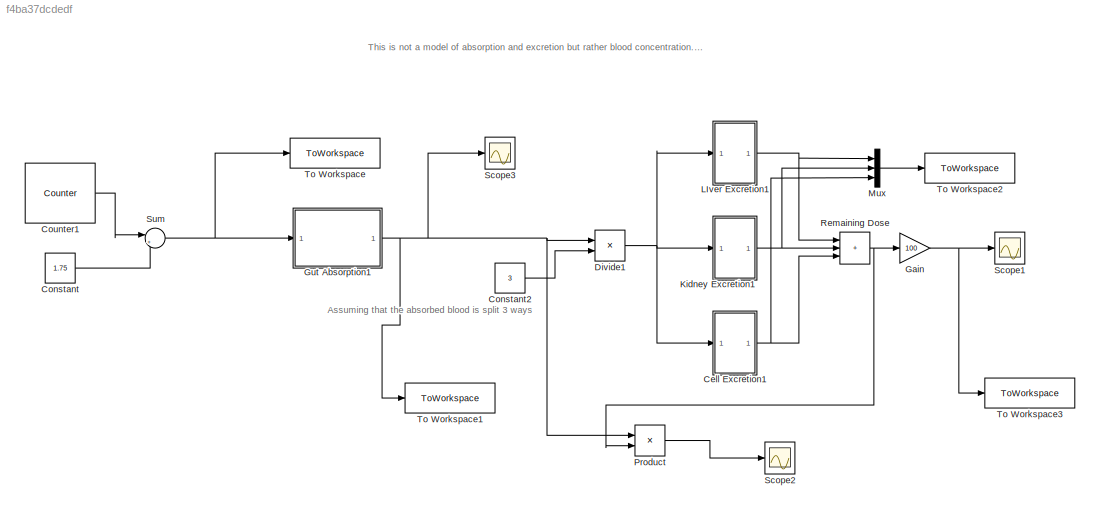
MODEL slx_f4ba37dcdedf
KIND model
CONFIG AbsTol = auto
CONFIG EnableMultiTasking = off
CONFIG FixedStep = auto
CONFIG MaxStep = auto
CONFIG MinStep = auto
CONFIG RelTol = 1e-3
CONFIG SampleTimeConstraint = Unconstrained
CONFIG SolverName = VariableStepAuto
CONFIG StartTime = 0.0
CONFIG StopTime = 1000
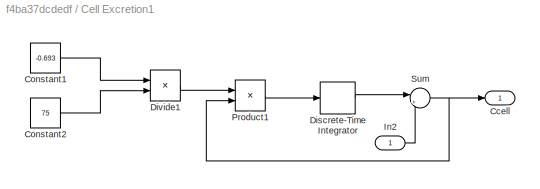
BLOCK [SubSystem] Cell Excretion1
  Ports = [1, 1]
  RequestExecContextInheritance = off
BLOCK [Outport] Cell Excretion1/Ccell
BLOCK [Constant] Cell Excretion1/Constant1
  Value = -0.693
BLOCK [Constant] Cell Excretion1/Constant2
  Value = 75
BLOCK [DiscreteIntegrator] Cell Excretion1/Discrete-Time Integrator
  ICPrevOutput = DiscIntNeverNeededParam
  ICPrevScaledInput = DiscIntNeverNeededParam
  InitialConditionSetting = Auto
  Ports = [1, 1]
  SampleTime = -1
BLOCK [Product] Cell Excretion1/Divide1
  Inputs = */
  Ports = [2, 1]
BLOCK [Inport] Cell Excretion1/In2
BLOCK [Product] Cell Excretion1/Product1
  Ports = [2, 1]
BLOCK [Sum] Cell Excretion1/Sum
  Inputs = |++
  Ports = [2, 1]
BLOCK [Constant] Constant
  Value = 1.75
BLOCK [Constant] Constant2
  Value = 3
BLOCK [Reference] Counter1  REF=dspswit3/Counter
  Ports = [0, 1]
  SourceBlock = dspswit3/Counter
  SourceProductBaseCode = DS
  SourceType = Counter
BLOCK [Product] Divide1
  Inputs = */
  Ports = [2, 1]
BLOCK [Gain] Gain
  Gain = 100
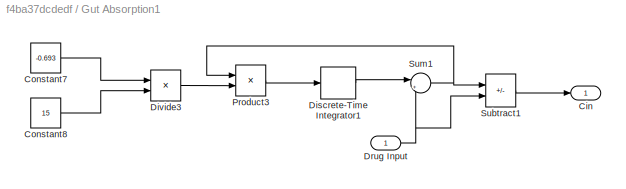
BLOCK [SubSystem] Gut Absorption1
  Ports = [1, 1]
  RequestExecContextInheritance = off
BLOCK [Outport] Gut Absorption1/Cin
BLOCK [Constant] Gut Absorption1/Constant7
  Value = -0.693
BLOCK [Constant] Gut Absorption1/Constant8
  Value = 15
BLOCK [DiscreteIntegrator] Gut Absorption1/Discrete-Time Integrator1
  ICPrevOutput = DiscIntNeverNeededParam
  ICPrevScaledInput = DiscIntNeverNeededParam
  InitialConditionSetting = Auto
  Ports = [1, 1]
  SampleTime = 0.1
BLOCK [Product] Gut Absorption1/Divide3
  Inputs = */
  Ports = [2, 1]
BLOCK [Inport] Gut Absorption1/Drug Input
BLOCK [Product] Gut Absorption1/Product3
  Ports = [2, 1]
BLOCK [Sum] Gut Absorption1/Subtract1
  IconShape = rectangular
  Inputs = -+
  Ports = [2, 1]
BLOCK [Sum] Gut Absorption1/Sum1
  Inputs = |++
  Ports = [2, 1]
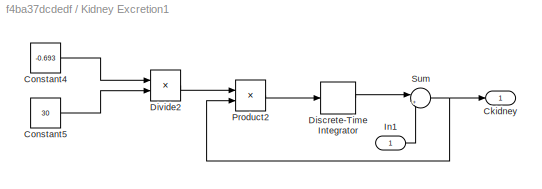
BLOCK [SubSystem] Kidney Excretion1
  Ports = [1, 1]
  RequestExecContextInheritance = off
BLOCK [Outport] Kidney Excretion1/Ckidney
BLOCK [Constant] Kidney Excretion1/Constant4
  Value = -0.693
BLOCK [Constant] Kidney Excretion1/Constant5
  Value = 30
BLOCK [DiscreteIntegrator] Kidney Excretion1/Discrete-Time Integrator
  ICPrevOutput = DiscIntNeverNeededParam
  ICPrevScaledInput = DiscIntNeverNeededParam
  InitialConditionSetting = Auto
  Ports = [1, 1]
  SampleTime = -1
BLOCK [Product] Kidney Excretion1/Divide2
  Inputs = */
  Ports = [2, 1]
BLOCK [Inport] Kidney Excretion1/In1
BLOCK [Product] Kidney Excretion1/Product2
  Ports = [2, 1]
BLOCK [Sum] Kidney Excretion1/Sum
  Inputs = |++
  Ports = [2, 1]
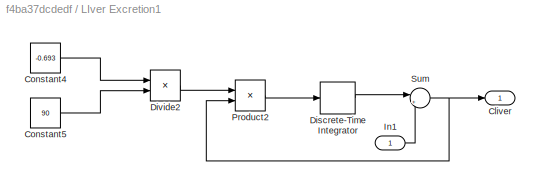
BLOCK [SubSystem] LIver Excretion1
  Ports = [1, 1]
  RequestExecContextInheritance = off
BLOCK [Outport] LIver Excretion1/Cliver
BLOCK [Constant] LIver Excretion1/Constant4
  Value = -0.693
BLOCK [Constant] LIver Excretion1/Constant5
  Value = 90
BLOCK [DiscreteIntegrator] LIver Excretion1/Discrete-Time Integrator
  ICPrevOutput = DiscIntNeverNeededParam
  ICPrevScaledInput = DiscIntNeverNeededParam
  InitialConditionSetting = Auto
  Ports = [1, 1]
  SampleTime = -1
BLOCK [Product] LIver Excretion1/Divide2
  Inputs = */
  Ports = [2, 1]
BLOCK [Inport] LIver Excretion1/In1
BLOCK [Product] LIver Excretion1/Product2
  Ports = [2, 1]
BLOCK [Sum] LIver Excretion1/Sum
  Inputs = |++
  Ports = [2, 1]
BLOCK [Mux] Mux
  DisplayOption = bar
  Inputs = 3
  Ports = [3, 1]
BLOCK [Product] Product
  Ports = [2, 1]
BLOCK [Sum] Remaining Dose
  IconShape = rectangular
  Inputs = +++
  Ports = [3, 1]
BLOCK [Scope] Scope1
  Floating = off
  NumInputPorts = 1
  Ports = [1]
  ScopeSpecificationString = Simulink.scopes.TimeScopeBlockCfg('CurrentConfiguration', extmgr.ConfigurationSet(extmgr.Configuration('Core','General UI',true),extmgr.Configuration('Core','Source UI',true),extmgr.Configuration('Sources','WiredSimulink',true,'DataLoggingVariableName','ScopeData1'),extmgr.Configuration('Visuals','Time Domain',true,'SerializedDisplays',{struct('MinYLimReal','-15.00653','MaxYLimReal','135.05873','Y...<+1438ch>
BLOCK [Scope] Scope2
  Floating = off
  NumInputPorts = 1
  Ports = [1]
  ScopeSpecificationString = Simulink.scopes.TimeScopeBlockCfg('CurrentConfiguration', extmgr.ConfigurationSet(extmgr.Configuration('Core','General UI',true),extmgr.Configuration('Core','Source UI',true),extmgr.Configuration('Sources','WiredSimulink',true),extmgr.Configuration('Visuals','Time Domain',true,'SerializedDisplays',{struct('MinYLimReal','-1.61011','MaxYLimReal','14.49095','YLabelReal','','MinYLimMag','0.00000','Max...<+1396ch>
BLOCK [Scope] Scope3
  Floating = off
  NumInputPorts = 1
  Ports = [1]
  ScopeSpecificationString = Simulink.scopes.TimeScopeBlockCfg('CurrentConfiguration', extmgr.ConfigurationSet(extmgr.Configuration('Core','General UI',true),extmgr.Configuration('Core','Source UI',true),extmgr.Configuration('Sources','WiredSimulink',true,'DataLoggingVariableName','ScopeData2'),extmgr.Configuration('Visuals','Time Domain',true,'SerializedDisplays',{struct('MinYLimReal','-1.42009','MaxYLimReal','12.78084','YLa...<+1443ch>
BLOCK [Sum] Sum
  Inputs = |++
  Ports = [2, 1]
BLOCK [ToWorkspace] To Workspace
  FixptAsFi = on
  MaxDataPoints = inf
  Ports = [1]
  SampleTime = -1
  SaveFormat = Timeseries
  VariableName = dose
BLOCK [ToWorkspace] To Workspace1
  FixptAsFi = on
  MaxDataPoints = inf
  Ports = [1]
  SampleTime = -1
  SaveFormat = Timeseries
  VariableName = Cin
BLOCK [ToWorkspace] To Workspace2
  FixptAsFi = on
  MaxDataPoints = inf
  Ports = [1]
  SampleTime = -1
  SaveFormat = Timeseries
  VariableName = Cout
BLOCK [ToWorkspace] To Workspace3
  FixptAsFi = on
  MaxDataPoints = inf
  Ports = [1]
  SampleTime = -1
  SaveFormat = Timeseries
  VariableName = Cout_tot
ANNOTATION (root): Assuming that the absorbed blood is split 3 ways
ANNOTATION (root): This is not a model of absorption and excretion but rather blood concentration. Blood concentration is add at gut absorption. It is then removed by the liver, kidneys, and cells. The remaining values represents the current blood concentration.
LINE Cell Excretion1/Constant1:1 -> Cell Excretion1/Divide1:1
LINE Cell Excretion1/Constant2:1 -> Cell Excretion1/Divide1:2
LINE Cell Excretion1/Discrete-Time Integrator:1 -> Cell Excretion1/Sum:1
LINE Cell Excretion1/Divide1:1 -> Cell Excretion1/Product1:1
LINE Cell Excretion1/In2:1 -> Cell Excretion1/Sum:2
LINE Cell Excretion1/Product1:1 -> Cell Excretion1/Discrete-Time Integrator:1
NET Cell Excretion1/Sum:1 -> Cell Excretion1/Ccell:1, Cell Excretion1/Product1:2
NET Cell Excretion1:1 -> Mux:3, Remaining Dose:3
LINE Constant2:1 -> Divide1:2
LINE Constant:1 -> Sum:2
LINE Counter1:1 -> Sum:1
NET Divide1:1 -> Cell Excretion1:1, Kidney Excretion1:1, LIver Excretion1:1
NET Gain:1 -> Scope1:1, To Workspace3:1
LINE Gut Absorption1/Constant7:1 -> Gut Absorption1/Divide3:1
LINE Gut Absorption1/Constant8:1 -> Gut Absorption1/Divide3:2
LINE Gut Absorption1/Discrete-Time Integrator1:1 -> Gut Absorption1/Sum1:1
LINE Gut Absorption1/Divide3:1 -> Gut Absorption1/Product3:2
NET Gut Absorption1/Drug Input:1 -> Gut Absorption1/Subtract1:2, Gut Absorption1/Sum1:2
LINE Gut Absorption1/Product3:1 -> Gut Absorption1/Discrete-Time Integrator1:1
LINE Gut Absorption1/Subtract1:1 -> Gut Absorption1/Cin:1
NET Gut Absorption1/Sum1:1 -> Gut Absorption1/Product3:1, Gut Absorption1/Subtract1:1
NET Gut Absorption1:1 -> Divide1:1, Product:1, Scope3:1, To Workspace1:1
LINE Kidney Excretion1/Constant4:1 -> Kidney Excretion1/Divide2:1
LINE Kidney Excretion1/Constant5:1 -> Kidney Excretion1/Divide2:2
LINE Kidney Excretion1/Discrete-Time Integrator:1 -> Kidney Excretion1/Sum:1
LINE Kidney Excretion1/Divide2:1 -> Kidney Excretion1/Product2:1
LINE Kidney Excretion1/In1:1 -> Kidney Excretion1/Sum:2
LINE Kidney Excretion1/Product2:1 -> Kidney Excretion1/Discrete-Time Integrator:1
NET Kidney Excretion1/Sum:1 -> Kidney Excretion1/Ckidney:1, Kidney Excretion1/Product2:2
NET Kidney Excretion1:1 -> Mux:2, Remaining Dose:2
LINE LIver Excretion1/Constant4:1 -> LIver Excretion1/Divide2:1
LINE LIver Excretion1/Constant5:1 -> LIver Excretion1/Divide2:2
LINE LIver Excretion1/Discrete-Time Integrator:1 -> LIver Excretion1/Sum:1
LINE LIver Excretion1/Divide2:1 -> LIver Excretion1/Product2:1
LINE LIver Excretion1/In1:1 -> LIver Excretion1/Sum:2
LINE LIver Excretion1/Product2:1 -> LIver Excretion1/Discrete-Time Integrator:1
NET LIver Excretion1/Sum:1 -> LIver Excretion1/Cliver:1, LIver Excretion1/Product2:2
NET LIver Excretion1:1 -> Mux:1, Remaining Dose:1
LINE Mux:1 -> To Workspace2:1
LINE Product:1 -> Scope2:1
NET Remaining Dose:1 -> Gain:1, Product:2
NET Sum:1 -> Gut Absorption1:1, To Workspace:1
note: NET lines group one-source signal fan-out (src -> all destinations, sorted); 1:1 wires keep LINE
